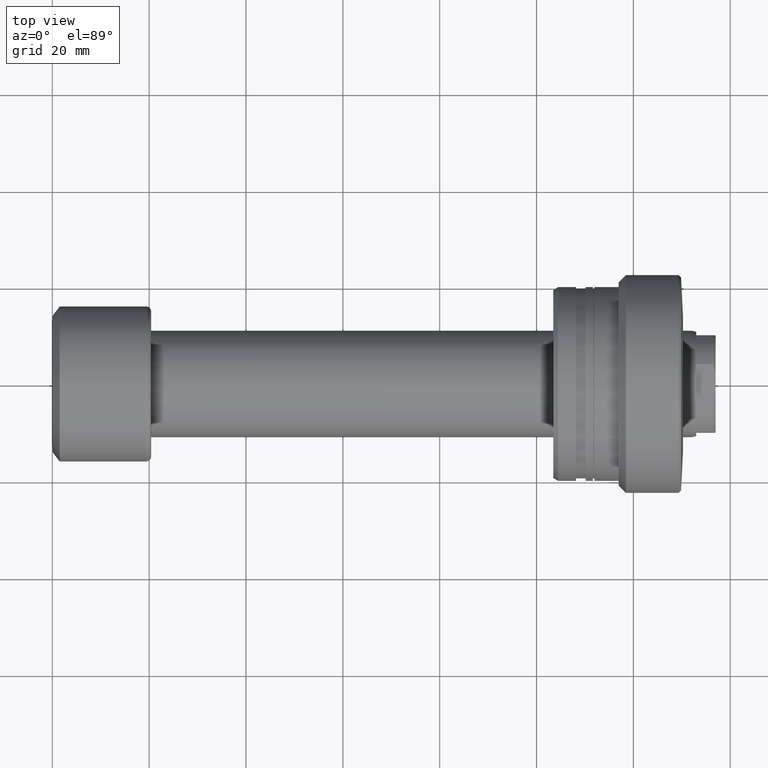
[diagram: clean part render]
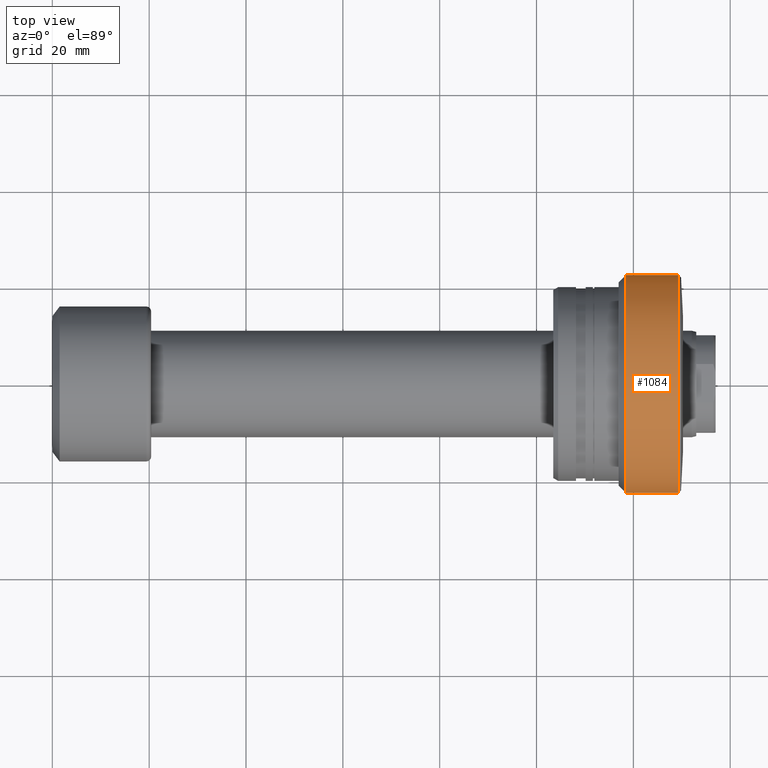
[diagram: same view with one face highlighted and labeled with its STEP entity id]
A machine part, top view. The second image highlights one B-rep face of the part: STEP entity #1084.
In plain terms, the highlighted cylindrical surface (partial cylindrical patch) has radius 22.5 mm, axis along (-1, 0, 0).
Its self-contained STEP definition (entity closure, byte-faithful):
#54 = AXIS2_PLACEMENT_3D ( 'NONE', #526, #2243, #694 ) ;
#69 = ORIENTED_EDGE ( 'NONE', *, *, #2371, .T. ) ;
#83 = VERTEX_POINT ( 'NONE', #2070 ) ;
#299 = CARTESIAN_POINT ( 'NONE',  ( -30.28002276692729211, 22.49999999999996803, 2.755455298081540833E-15 ) ) ;
#353 = VECTOR ( 'NONE', #978, 1000.000000000000000 ) ;
#471 = CARTESIAN_POINT ( 'NONE',  ( -1.600000000000696865, -22.50000000000000000, 0.000000000000000000 ) ) ;
#521 = DIRECTION ( 'NONE',  ( -1.329954664915554407E-15, -1.000000000000000000, 0.000000000000000000 ) ) ;
#526 = CARTESIAN_POINT ( 'NONE',  ( -30.28002276692732408, 0.000000000000000000, 0.000000000000000000 ) ) ;
#534 = ORIENTED_EDGE ( 'NONE', *, *, #692, .F. ) ;
#575 = CARTESIAN_POINT ( 'NONE',  ( -12.50000000000065370, -2.371652247300287340E-14, 0.000000000000000000 ) ) ;
#670 = AXIS2_PLACEMENT_3D ( 'NONE', #1089, #1852, #521 ) ;
#675 = CARTESIAN_POINT ( 'NONE',  ( -12.50000000000068212, -22.49999999999999645, 2.755455298081541622E-15 ) ) ;
#692 = EDGE_CURVE ( 'NONE', #2265, #83, #2014, .T. ) ;
#694 = DIRECTION ( 'NONE',  ( -1.387778780781447648E-15, -1.000000000000000000, 0.000000000000000000 ) ) ;
#828 = VECTOR ( 'NONE', #1990, 1000.000000000000000 ) ;
#953 = VERTEX_POINT ( 'NONE', #1295 ) ;
#978 = DIRECTION ( 'NONE',  ( -1.000000000000000000, 1.333885945136072597E-15, -0.000000000000000000 ) ) ;
#1084 = ADVANCED_FACE ( 'NONE', ( #1641 ), #2407, .T. ) ;
#1089 = CARTESIAN_POINT ( 'NONE',  ( -1.600000000000666889, -3.825587927498604708E-14, 0.000000000000000000 ) ) ;
#1223 = EDGE_CURVE ( 'NONE', #2428, #2265, #2073, .T. ) ;
#1268 = ORIENTED_EDGE ( 'NONE', *, *, #1421, .T. ) ;
#1295 = CARTESIAN_POINT ( 'NONE',  ( -1.600000000000636913, 22.49999999999992184, 2.755455298081540439E-15 ) ) ;
#1320 = DIRECTION ( 'NONE',  ( -1.000000000000000000, 1.333885945136072597E-15, -0.000000000000000000 ) ) ;
#1421 = EDGE_CURVE ( 'NONE', #2428, #953, #1977, .T. ) ;
#1641 = FACE_OUTER_BOUND ( 'NONE', #2231, .T. ) ;
#1687 = ORIENTED_EDGE ( 'NONE', *, *, #1223, .F. ) ;
#1852 = DIRECTION ( 'NONE',  ( -1.000000000000000000, 1.333885945136072597E-15, -0.000000000000000000 ) ) ;
#1903 = CARTESIAN_POINT ( 'NONE',  ( -30.28002276692735606, -22.49999999999996803, 0.000000000000000000 ) ) ;
#1917 = DIRECTION ( 'NONE',  ( -1.310679959626922274E-15, -1.000000000000000000, 0.000000000000000000 ) ) ;
#1977 = CIRCLE ( 'NONE', #670, 22.49999999999996092 ) ;
#1990 = DIRECTION ( 'NONE',  ( -1.000000000000000000, 1.333885945136072597E-15, -0.000000000000000000 ) ) ;
#2014 = CIRCLE ( 'NONE', #2413, 22.49999999999997513 ) ;
#2027 = LINE ( 'NONE', #299, #828 ) ;
#2070 = CARTESIAN_POINT ( 'NONE',  ( -12.50000000000062350, 22.49999999999995026, 0.000000000000000000 ) ) ;
#2073 = LINE ( 'NONE', #1903, #353 ) ;
#2231 = EDGE_LOOP ( 'NONE', ( #1268, #69, #534, #1687 ) ) ;
#2243 = DIRECTION ( 'NONE',  ( -1.000000000000000000, 1.333885945136072597E-15, -0.000000000000000000 ) ) ;
#2265 = VERTEX_POINT ( 'NONE', #675 ) ;
#2371 = EDGE_CURVE ( 'NONE', #953, #83, #2027, .T. ) ;
#2407 = CYLINDRICAL_SURFACE ( 'NONE', #54, 22.49999999999996803 ) ;
#2413 = AXIS2_PLACEMENT_3D ( 'NONE', #575, #1320, #1917 ) ;
#2428 = VERTEX_POINT ( 'NONE', #471 ) ;